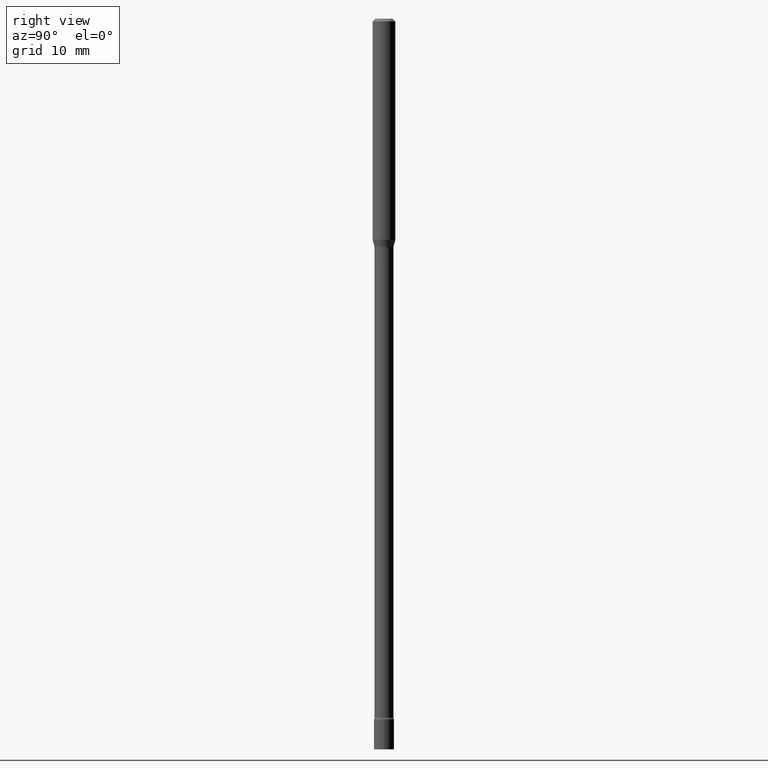
[diagram: clean part render]
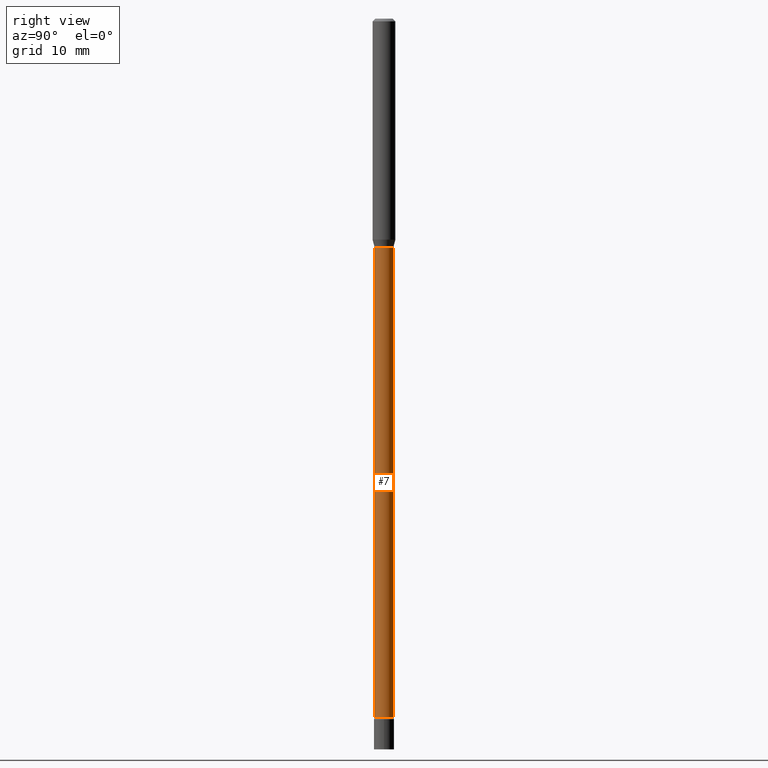
[diagram: same view with one face highlighted and labeled with its STEP entity id]
A machine part, right view. The second image highlights one B-rep face of the part: STEP entity #7.
In plain terms, the highlighted cylindrical surface (edge-blend (fillet) strip) has radius 1.3132 mm, axis along (-0, 0, 1).
Its self-contained STEP definition (entity closure, byte-faithful):
#7 = ADVANCED_FACE ( 'NONE', ( #302 ), #94, .T. ) ;
#19 = DIRECTION ( 'NONE',  ( -6.982962677686265133E-15, -1.000000000000000000, 3.491579348581809873E-15 ) ) ;
#30 = VERTEX_POINT ( 'NONE', #417 ) ;
#41 = CARTESIAN_POINT ( 'NONE',  ( 3.673505943879728028E-16, 0.05170000000000015555, -1.805146523216801116E-16 ) ) ;
#71 = CARTESIAN_POINT ( 'NONE',  ( 3.673505943880662335E-16, 0.05169999999999561058, -1.251974787463811412 ) ) ;
#94 = CYLINDRICAL_SURFACE ( 'NONE', #504, 0.05170000000000015555 ) ;
#104 = EDGE_CURVE ( 'NONE', #487, #130, #442, .T. ) ;
#105 = ORIENTED_EDGE ( 'NONE', *, *, #306, .T. ) ;
#130 = VERTEX_POINT ( 'NONE', #71 ) ;
#171 = LINE ( 'NONE', #176, #449 ) ;
#173 = DIRECTION ( 'NONE',  ( -2.445400366350421990E-29, 3.491579348581810268E-15, 1.000000000000000000 ) ) ;
#176 = CARTESIAN_POINT ( 'NONE',  ( -3.610191704363809896E-16, -0.05170000000000015555, 1.805146523216801116E-16 ) ) ;
#179 = AXIS2_PLACEMENT_3D ( 'NONE', #207, #397, #402 ) ;
#204 = CARTESIAN_POINT ( 'NONE',  ( 3.790745495281081238E-16, 0.05169999999998695778, -3.825613307291703347 ) ) ;
#207 = CARTESIAN_POINT ( 'NONE',  ( 9.355156183166180698E-29, -1.335743241939947111E-14, -3.825613307291703347 ) ) ;
#210 = ORIENTED_EDGE ( 'NONE', *, *, #104, .F. ) ;
#235 = DIRECTION ( 'NONE',  ( -2.445400366350422270E-29, 3.491579348581810268E-15, 1.000000000000000000 ) ) ;
#241 = CIRCLE ( 'NONE', #179, 0.05170000000000031515 ) ;
#247 = EDGE_CURVE ( 'NONE', #394, #130, #391, .T. ) ;
#258 = CARTESIAN_POINT ( 'NONE',  ( -3.610191704363492873E-16, -0.05170000000000436052, -1.251974787463810745 ) ) ;
#275 = AXIS2_PLACEMENT_3D ( 'NONE', #494, #293, #424 ) ;
#293 = DIRECTION ( 'NONE',  ( -2.445400366350421990E-29, 3.491579348581810268E-15, 1.000000000000000000 ) ) ;
#302 = FACE_OUTER_BOUND ( 'NONE', #332, .T. ) ;
#306 = EDGE_CURVE ( 'NONE', #30, #394, #241, .T. ) ;
#332 = EDGE_LOOP ( 'NONE', ( #105, #365, #210, #347 ) ) ;
#347 = ORIENTED_EDGE ( 'NONE', *, *, #416, .F. ) ;
#365 = ORIENTED_EDGE ( 'NONE', *, *, #247, .T. ) ;
#367 = CARTESIAN_POINT ( 'NONE',  ( 0.000000000000000000, 0.000000000000000000, 0.000000000000000000 ) ) ;
#372 = DIRECTION ( 'NONE',  ( -2.445400366350422270E-29, 3.491579348581810268E-15, 1.000000000000000000 ) ) ;
#391 = LINE ( 'NONE', #41, #413 ) ;
#394 = VERTEX_POINT ( 'NONE', #204 ) ;
#397 = DIRECTION ( 'NONE',  ( -2.445400366350421990E-29, 3.491579348581810268E-15, 1.000000000000000000 ) ) ;
#402 = DIRECTION ( 'NONE',  ( -6.982962677686266711E-15, -1.000000000000000000, 0.000000000000000000 ) ) ;
#413 = VECTOR ( 'NONE', #235, 39.37007874015748143 ) ;
#416 = EDGE_CURVE ( 'NONE', #30, #487, #171, .T. ) ;
#417 = CARTESIAN_POINT ( 'NONE',  ( -3.610191704362886436E-16, -0.05170000000001367252, -3.825613307291703347 ) ) ;
#424 = DIRECTION ( 'NONE',  ( -6.982962677686266711E-15, -1.000000000000000000, 5.284038672464726492E-15 ) ) ;
#442 = CIRCLE ( 'NONE', #275, 0.05169999999999998902 ) ;
#449 = VECTOR ( 'NONE', #372, 39.37007874015748143 ) ;
#487 = VERTEX_POINT ( 'NONE', #258 ) ;
#494 = CARTESIAN_POINT ( 'NONE',  ( 3.061579603925495244E-29, -4.371369312853743767E-15, -1.251974787463811190 ) ) ;
#504 = AXIS2_PLACEMENT_3D ( 'NONE', #367, #173, #19 ) ;